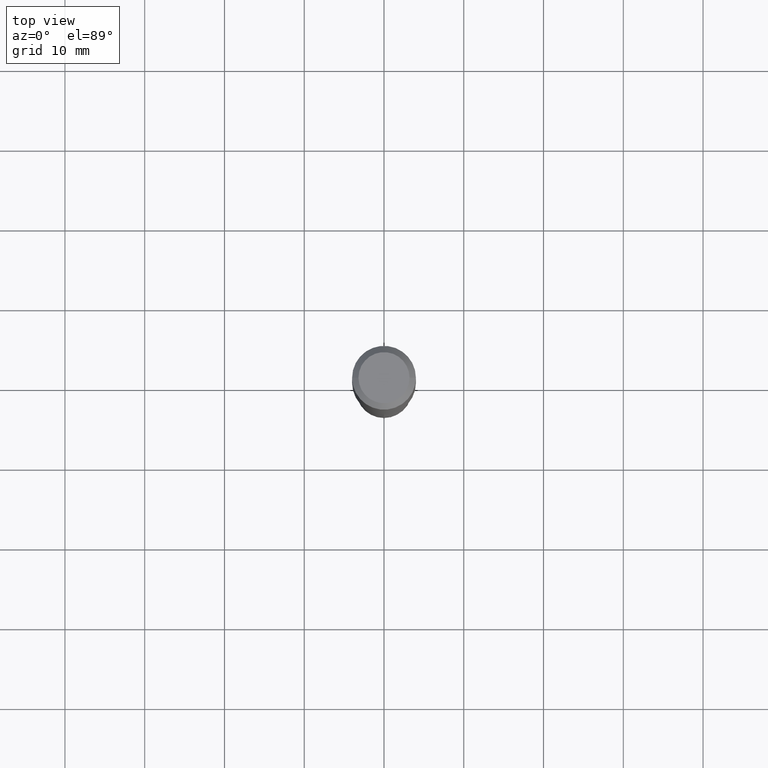
[diagram: clean part render]
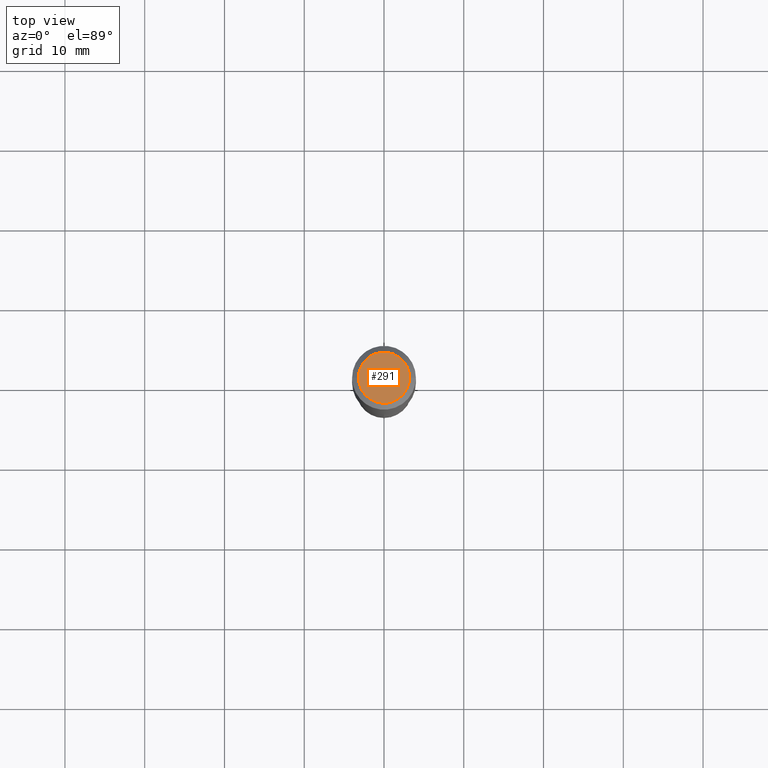
[diagram: same view with one face highlighted and labeled with its STEP entity id]
A machine part, top view. The second image highlights one B-rep face of the part: STEP entity #291.
In plain terms, the highlighted planar face has unit normal (0, -0, -1).
Its self-contained STEP definition (entity closure, byte-faithful):
#3 = CARTESIAN_POINT ( 'NONE',  ( -0.1260000000000000009, 9.348441284752484904E-16, 3.860086710906114178E-18 ) ) ;
#15 = DIRECTION ( 'NONE',  ( -2.445468806185136597E-29, 3.491481338843145583E-15, 1.000000000000000000 ) ) ;
#55 = PLANE ( 'NONE',  #360 ) ;
#64 = DIRECTION ( 'NONE',  ( 1.000000000000000000, -6.982962677686265922E-15, 4.876281427513067258E-29 ) ) ;
#67 = DIRECTION ( 'NONE',  ( -2.445468806185136597E-29, 3.491481338843145583E-15, 1.000000000000000000 ) ) ;
#107 = EDGE_CURVE ( 'NONE', #174, #304, #476, .T. ) ;
#115 = ORIENTED_EDGE ( 'NONE', *, *, #107, .T. ) ;
#161 = FACE_OUTER_BOUND ( 'NONE', #295, .T. ) ;
#162 = DIRECTION ( 'NONE',  ( -1.000000000000000000, 6.982962677686265922E-15, -4.876176775795935793E-29 ) ) ;
#174 = VERTEX_POINT ( 'NONE', #438 ) ;
#212 = AXIS2_PLACEMENT_3D ( 'NONE', #278, #67, #226 ) ;
#213 = CIRCLE ( 'NONE', #457, 0.1260000000000000009 ) ;
#215 = CARTESIAN_POINT ( 'NONE',  ( -4.719860820353100843E-47, 6.738710358733633822E-33, 1.930043355456229866E-18 ) ) ;
#226 = DIRECTION ( 'NONE',  ( 1.000000000000000000, -6.982962677686265922E-15, 4.876281427513067258E-29 ) ) ;
#239 = DIRECTION ( 'NONE',  ( 2.438088387897960049E-29, -3.491481338843145188E-15, -1.000000000000000000 ) ) ;
#278 = CARTESIAN_POINT ( 'NONE',  ( -9.439721640706201686E-47, 1.347742071746726764E-32, 3.860086710912459732E-18 ) ) ;
#291 = ADVANCED_FACE ( 'NONE', ( #161 ), #55, .F. ) ;
#295 = EDGE_LOOP ( 'NONE', ( #374, #115 ) ) ;
#304 = VERTEX_POINT ( 'NONE', #3 ) ;
#360 = AXIS2_PLACEMENT_3D ( 'NONE', #215, #239, #162 ) ;
#374 = ORIENTED_EDGE ( 'NONE', *, *, #387, .T. ) ;
#375 = CARTESIAN_POINT ( 'NONE',  ( -9.439721640706201686E-47, 1.347742071746726764E-32, 3.860086710912459732E-18 ) ) ;
#387 = EDGE_CURVE ( 'NONE', #304, #174, #213, .T. ) ;
#438 = CARTESIAN_POINT ( 'NONE',  ( 0.1260000000000000009, -1.027466422270894443E-15, 3.860086710919128072E-18 ) ) ;
#457 = AXIS2_PLACEMENT_3D ( 'NONE', #375, #15, #64 ) ;
#476 = CIRCLE ( 'NONE', #212, 0.1260000000000000009 ) ;